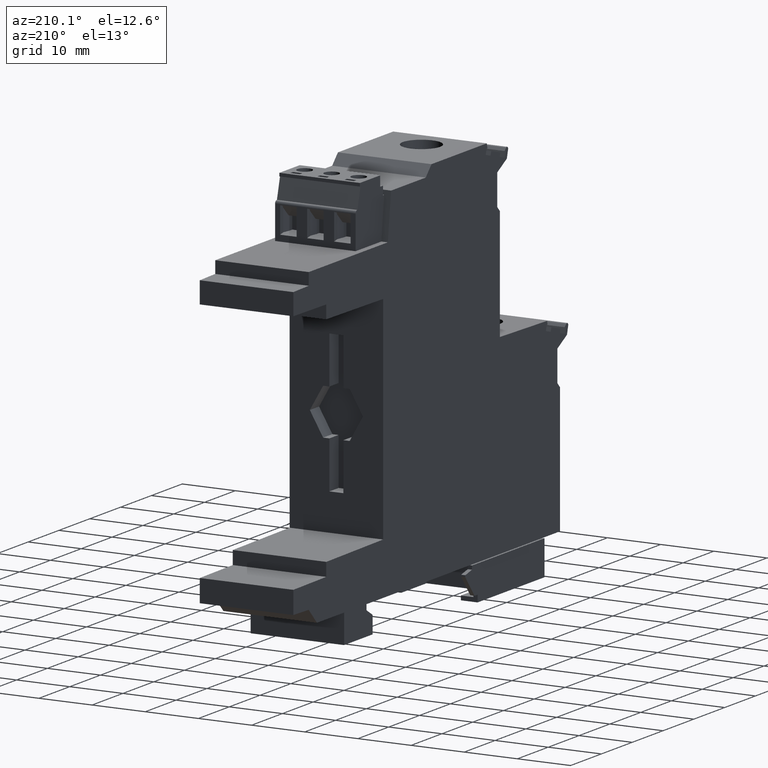
[diagram: clean part render]
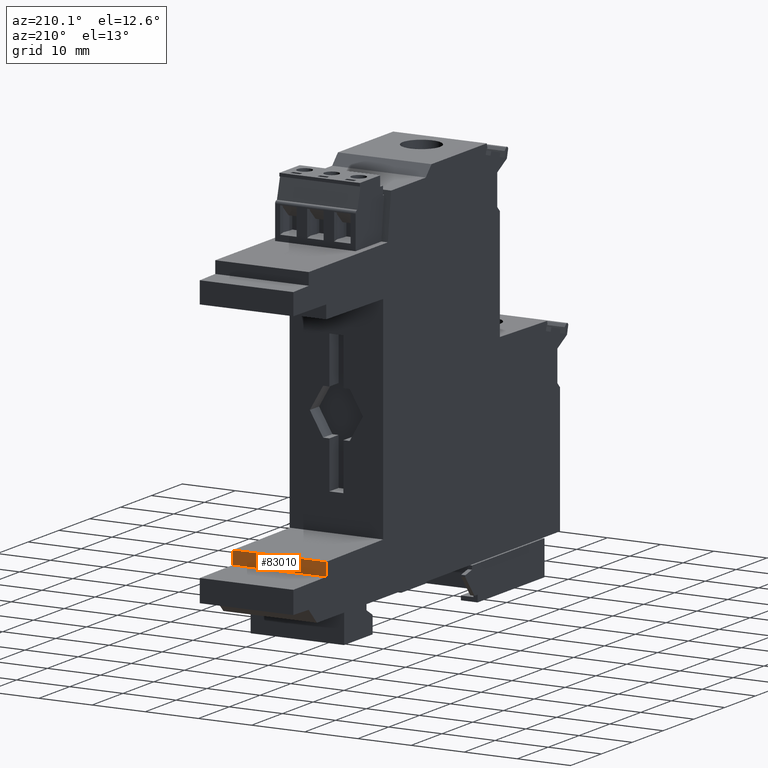
[diagram: same view with one face highlighted and labeled with its STEP entity id]
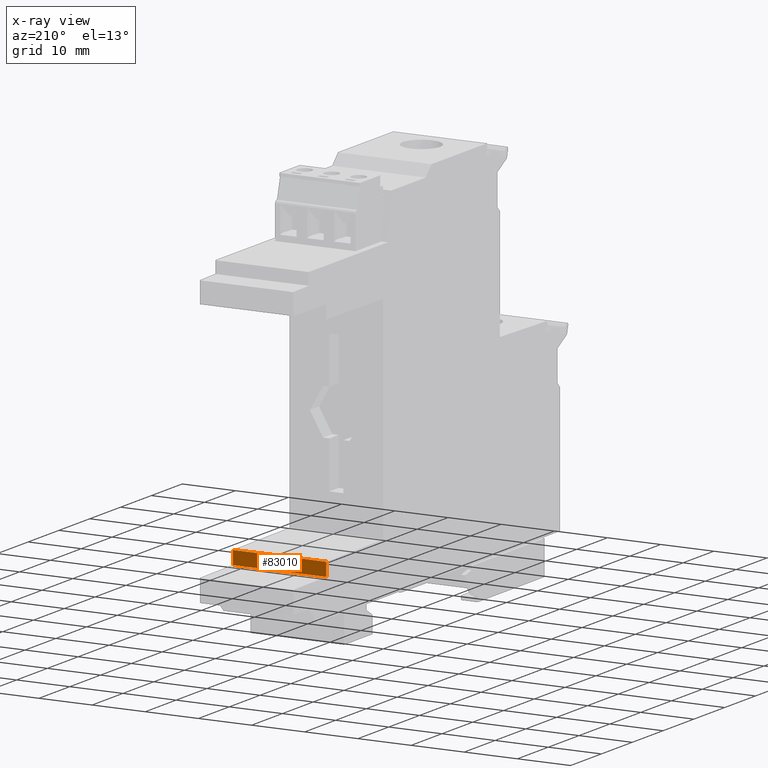
[diagram: x-ray of the same camera — body ghosted, the highlighted face saturated]
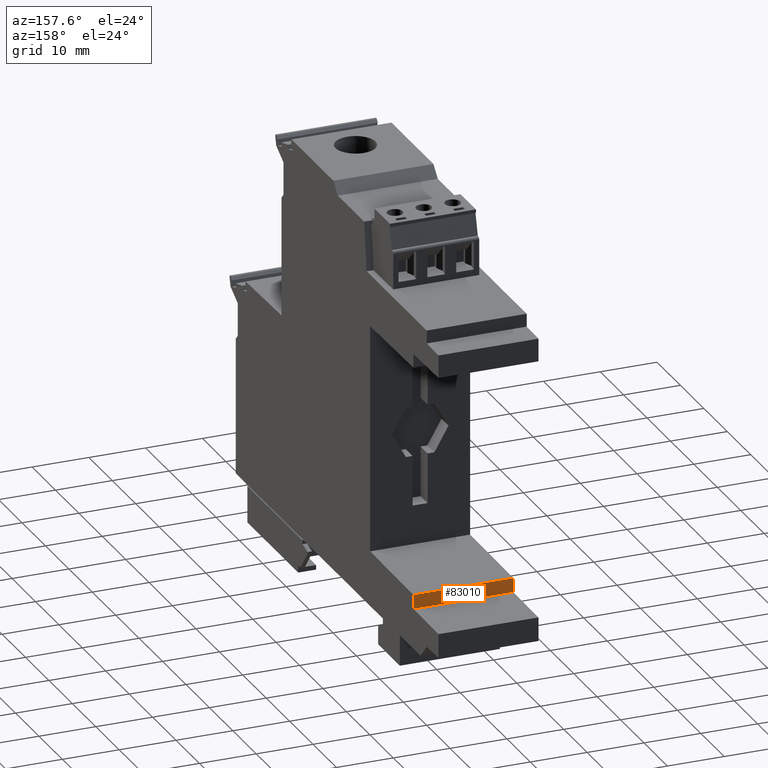
[diagram: same view with one face highlighted and labeled with its STEP entity id]
A machine part, auxiliary view. The second image highlights one B-rep face of the part: STEP entity #83010.
The next image is the same camera in x-ray: the body ghosted, the highlighted face saturated — about 0% of this face is hidden behind the body in this view.
A second angle (auxiliary view) of the same face is appended — the face is thin or edge-on in the first view.
In plain terms, the highlighted planar face has unit normal (-0, -1, 0).
Its self-contained STEP definition (entity closure, byte-faithful):
#29590=CARTESIAN_POINT('',(20.2072482415016,67.1645893797424,
17.5999999999704));
#29600=VERTEX_POINT('',#29590);
#29630=CARTESIAN_POINT('',(-2.97634796130255,67.1645893797421,
17.5999999999704));
#29640=DIRECTION('',(-1.,-1.25004173678889E-14,-6.24505735487405E-17));
#29650=VECTOR('',#29640,1.);
#29660=LINE('',#29630,#29650);
#29670=CARTESIAN_POINT('',(22.7072482405167,67.1645893797424,
17.5999999999704));
#29680=VERTEX_POINT('',#29670);
#29690=EDGE_CURVE('',#29680,#29600,#29660,.T.);
#44660=CARTESIAN_POINT('',(22.7072482405167,67.1645893797424,
1.66423639290373E-11));
#44670=VERTEX_POINT('',#44660);
#44700=CARTESIAN_POINT('',(-2.97634796130255,67.1645893797421,
1.66407599872953E-11));
#44710=DIRECTION('',(1.,1.25004173678889E-14,6.24505735487405E-17));
#44720=VECTOR('',#44710,1.);
#44730=LINE('',#44700,#44720);
#44740=CARTESIAN_POINT('',(20.2072482415016,67.1645893797424,
1.66422078039246E-11));
#44750=VERTEX_POINT('',#44740);
#44760=EDGE_CURVE('',#44750,#44670,#44730,.T.);
#80470=CARTESIAN_POINT('',(20.2072482415016,67.1645893797424,0.));
#80480=DIRECTION('',(-6.24500451351651E-17,9.67624048218938E-31,1.));
#80490=VECTOR('',#80480,1.);
#80500=LINE('',#80470,#80490);
#80510=EDGE_CURVE('',#44750,#29600,#80500,.T.);
#82850=CARTESIAN_POINT('',(15.9033445387625,67.1645893797424,
24.7680023999716));
#82860=DIRECTION('',(1.25004173678889E-14,-1.,1.74451938068811E-30));
#82870=DIRECTION('',(1.,1.25004173678889E-14,6.24500451351651E-17));
#82880=AXIS2_PLACEMENT_3D('',#82850,#82860,#82870);
#82890=PLANE('',#82880);
#82900=ORIENTED_EDGE('',*,*,#29690,.F.);
#82910=ORIENTED_EDGE('',*,*,#80510,.T.);
#82920=ORIENTED_EDGE('',*,*,#44760,.F.);
#82930=CARTESIAN_POINT('',(22.7072482405167,67.1645893797424,
-3.04026576501333E-11));
#82940=DIRECTION('',(-6.24500451351651E-17,9.63867751855049E-31,1.));
#82950=VECTOR('',#82940,1.);
#82960=LINE('',#82930,#82950);
#82970=EDGE_CURVE('',#44670,#29680,#82960,.T.);
#82980=ORIENTED_EDGE('',*,*,#82970,.F.);
#82990=EDGE_LOOP('',(#82980,#82920,#82910,#82900));
#83000=FACE_OUTER_BOUND('',#82990,.T.);
#83010=ADVANCED_FACE('',(#83000),#82890,.F.);